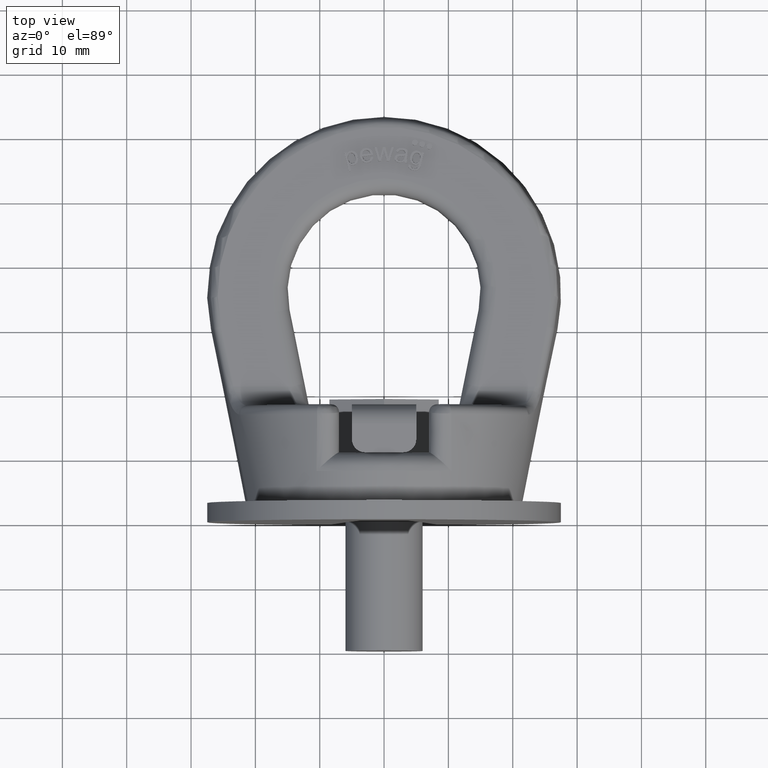
[diagram: clean part render]
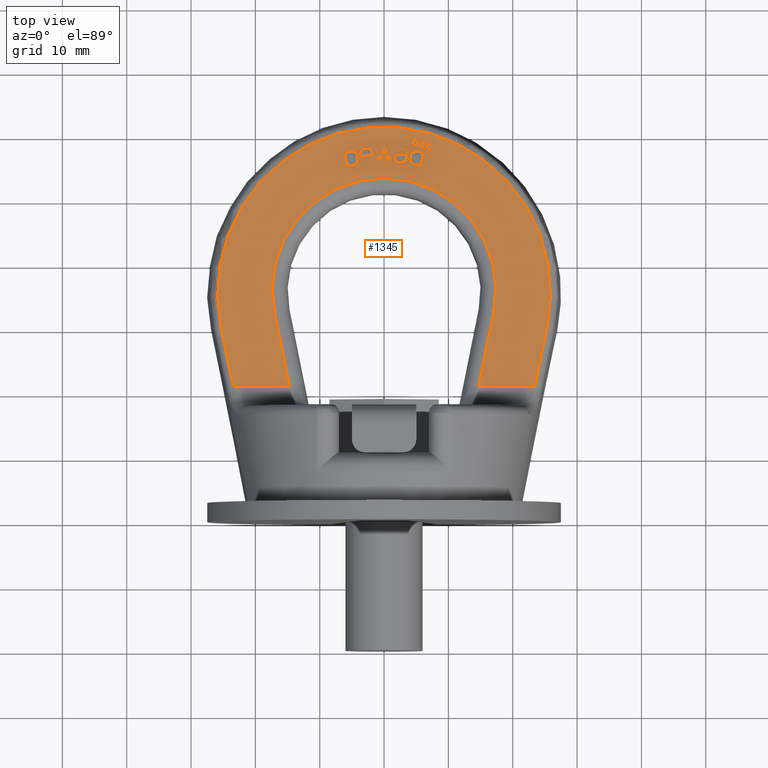
[diagram: same view with one face highlighted and labeled with its STEP entity id]
A machine part, top view. The second image highlights one B-rep face of the part: STEP entity #1345.
In plain terms, the highlighted planar face has unit normal (0, -0, -1).
Its self-contained STEP definition (entity closure, byte-faithful):
#1345=ADVANCED_FACE('',(#1795,#1796,#1797,#1798,#1799,#1800,#1801,#1802,
#1803),#1585,.F.);
#1585=PLANE('',#5169);
#1704=CIRCLE('',#5164,0.45);
#1705=CIRCLE('',#5165,0.45);
#1706=CIRCLE('',#5166,0.45);
#1707=CIRCLE('',#5167,17.4);
#1708=CIRCLE('',#5168,25.8582675367087);
#1795=FACE_BOUND('',#1853,.T.);
#1796=FACE_BOUND('',#1854,.T.);
#1797=FACE_BOUND('',#1855,.T.);
#1798=FACE_BOUND('',#1856,.T.);
#1799=FACE_BOUND('',#1857,.T.);
#1800=FACE_BOUND('',#1858,.T.);
#1801=FACE_BOUND('',#1859,.T.);
#1802=FACE_BOUND('',#1860,.T.);
#1803=FACE_BOUND('',#1861,.T.);
#1853=EDGE_LOOP('',(#2745,#2746,#2747,#2748,#2749,#2750,#2751));
#1854=EDGE_LOOP('',(#2752,#2753,#2754,#2755,#2756,#2757,#2758,#2759,#2760,
#2761,#2762,#2763,#2764,#2765,#2766));
#1855=EDGE_LOOP('',(#2767,#2768,#2769,#2770,#2771));
#1856=EDGE_LOOP('',(#2772));
#1857=EDGE_LOOP('',(#2773));
#1858=EDGE_LOOP('',(#2774));
#1859=EDGE_LOOP('',(#2775,#2776,#2777,#2778,#2779,#2780,#2781,#2782));
#1860=EDGE_LOOP('',(#2783,#2784,#2785,#2786,#2787,#2788));
#1861=EDGE_LOOP('',(#2789,#2790,#2791,#2792,#2793,#2794,#2795,#2796,#2797));
#2129=LINE('',#6323,#2409);
#2130=LINE('',#6355,#2410);
#2131=LINE('',#6357,#2411);
#2132=LINE('',#6358,#2412);
#2133=LINE('',#6361,#2413);
#2134=LINE('',#6363,#2414);
#2135=LINE('',#6365,#2415);
#2136=LINE('',#6379,#2416);
#2137=LINE('',#6381,#2417);
#2138=LINE('',#6397,#2418);
#2139=LINE('',#6399,#2419);
#2140=LINE('',#6401,#2420);
#2141=LINE('',#6403,#2421);
#2142=LINE('',#6405,#2422);
#2143=LINE('',#6421,#2423);
#2144=LINE('',#6444,#2424);
#2145=LINE('',#6454,#2425);
#2146=LINE('',#6456,#2426);
#2147=LINE('',#6470,#2427);
#2148=LINE('',#6472,#2428);
#2149=LINE('',#6473,#2429);
#2150=LINE('',#6476,#2430);
#2151=LINE('',#6478,#2431);
#2152=LINE('',#6480,#2432);
#2153=LINE('',#6482,#2433);
#2154=LINE('',#6506,#2434);
#2155=LINE('',#6551,#2435);
#2409=VECTOR('',#5433,1.);
#2410=VECTOR('',#5434,1.);
#2411=VECTOR('',#5435,1.);
#2412=VECTOR('',#5436,1.);
#2413=VECTOR('',#5437,1.);
#2414=VECTOR('',#5438,1.);
#2415=VECTOR('',#5439,1.);
#2416=VECTOR('',#5440,1.);
#2417=VECTOR('',#5441,1.);
#2418=VECTOR('',#5442,1.);
#2419=VECTOR('',#5443,1.);
#2420=VECTOR('',#5444,1.);
#2421=VECTOR('',#5445,1.);
#2422=VECTOR('',#5446,1.);
#2423=VECTOR('',#5447,1.);
#2424=VECTOR('',#5448,1.);
#2425=VECTOR('',#5457,1.);
#2426=VECTOR('',#5458,1.);
#2427=VECTOR('',#5461,1.);
#2428=VECTOR('',#5462,1.);
#2429=VECTOR('',#5463,1.);
#2430=VECTOR('',#5464,1.);
#2431=VECTOR('',#5465,1.);
#2432=VECTOR('',#5466,1.);
#2433=VECTOR('',#5467,1.);
#2434=VECTOR('',#5468,1.);
#2435=VECTOR('',#5469,1.);
#2745=ORIENTED_EDGE('',*,*,#4312,.T.);
#2746=ORIENTED_EDGE('',*,*,#4313,.T.);
#2747=ORIENTED_EDGE('',*,*,#4314,.T.);
#2748=ORIENTED_EDGE('',*,*,#4315,.T.);
#2749=ORIENTED_EDGE('',*,*,#4316,.T.);
#2750=ORIENTED_EDGE('',*,*,#4317,.T.);
#2751=ORIENTED_EDGE('',*,*,#4318,.T.);
#2752=ORIENTED_EDGE('',*,*,#4319,.T.);
#2753=ORIENTED_EDGE('',*,*,#4320,.T.);
#2754=ORIENTED_EDGE('',*,*,#4321,.T.);
#2755=ORIENTED_EDGE('',*,*,#4322,.T.);
#2756=ORIENTED_EDGE('',*,*,#4323,.T.);
#2757=ORIENTED_EDGE('',*,*,#4324,.T.);
#2758=ORIENTED_EDGE('',*,*,#4325,.T.);
#2759=ORIENTED_EDGE('',*,*,#4326,.T.);
#2760=ORIENTED_EDGE('',*,*,#4327,.T.);
#2761=ORIENTED_EDGE('',*,*,#4328,.T.);
#2762=ORIENTED_EDGE('',*,*,#4329,.T.);
#2763=ORIENTED_EDGE('',*,*,#4330,.T.);
#2764=ORIENTED_EDGE('',*,*,#4331,.T.);
#2765=ORIENTED_EDGE('',*,*,#4332,.T.);
#2766=ORIENTED_EDGE('',*,*,#4333,.T.);
#2767=ORIENTED_EDGE('',*,*,#4334,.T.);
#2768=ORIENTED_EDGE('',*,*,#4335,.T.);
#2769=ORIENTED_EDGE('',*,*,#4336,.T.);
#2770=ORIENTED_EDGE('',*,*,#4337,.T.);
#2771=ORIENTED_EDGE('',*,*,#4338,.T.);
#2772=ORIENTED_EDGE('',*,*,#4339,.F.);
#2773=ORIENTED_EDGE('',*,*,#4340,.F.);
#2774=ORIENTED_EDGE('',*,*,#4341,.F.);
#2775=ORIENTED_EDGE('',*,*,#4342,.T.);
#2776=ORIENTED_EDGE('',*,*,#4343,.T.);
#2777=ORIENTED_EDGE('',*,*,#4344,.T.);
#2778=ORIENTED_EDGE('',*,*,#4345,.T.);
#2779=ORIENTED_EDGE('',*,*,#4346,.T.);
#2780=ORIENTED_EDGE('',*,*,#4347,.T.);
#2781=ORIENTED_EDGE('',*,*,#4348,.T.);
#2782=ORIENTED_EDGE('',*,*,#4349,.T.);
#2783=ORIENTED_EDGE('',*,*,#4350,.T.);
#2784=ORIENTED_EDGE('',*,*,#4351,.T.);
#2785=ORIENTED_EDGE('',*,*,#4352,.T.);
#2786=ORIENTED_EDGE('',*,*,#4353,.T.);
#2787=ORIENTED_EDGE('',*,*,#4354,.T.);
#2788=ORIENTED_EDGE('',*,*,#4355,.T.);
#2789=ORIENTED_EDGE('',*,*,#4356,.T.);
#2790=ORIENTED_EDGE('',*,*,#4357,.T.);
#2791=ORIENTED_EDGE('',*,*,#4358,.T.);
#2792=ORIENTED_EDGE('',*,*,#4359,.T.);
#2793=ORIENTED_EDGE('',*,*,#4360,.T.);
#2794=ORIENTED_EDGE('',*,*,#4361,.T.);
#2795=ORIENTED_EDGE('',*,*,#4362,.T.);
#2796=ORIENTED_EDGE('',*,*,#4363,.T.);
#2797=ORIENTED_EDGE('',*,*,#4364,.T.);
#3923=VERTEX_POINT('',#6316);
#3924=VERTEX_POINT('',#6317);
#3925=VERTEX_POINT('',#6322);
#3926=VERTEX_POINT('',#6324);
#3927=VERTEX_POINT('',#6337);
#3928=VERTEX_POINT('',#6354);
#3929=VERTEX_POINT('',#6356);
#3930=VERTEX_POINT('',#6359);
#3931=VERTEX_POINT('',#6360);
#3932=VERTEX_POINT('',#6362);
#3933=VERTEX_POINT('',#6364);
#3934=VERTEX_POINT('',#6366);
#3935=VERTEX_POINT('',#6373);
#3936=VERTEX_POINT('',#6378);
#3937=VERTEX_POINT('',#6380);
#3938=VERTEX_POINT('',#6382);
#3939=VERTEX_POINT('',#6389);
#3940=VERTEX_POINT('',#6396);
#3941=VERTEX_POINT('',#6398);
#3942=VERTEX_POINT('',#6400);
#3943=VERTEX_POINT('',#6402);
#3944=VERTEX_POINT('',#6404);
#3945=VERTEX_POINT('',#6414);
#3946=VERTEX_POINT('',#6415);
#3947=VERTEX_POINT('',#6420);
#3948=VERTEX_POINT('',#6422);
#3949=VERTEX_POINT('',#6443);
#3950=VERTEX_POINT('',#6446);
#3951=VERTEX_POINT('',#6448);
#3952=VERTEX_POINT('',#6450);
#3953=VERTEX_POINT('',#6452);
#3954=VERTEX_POINT('',#6453);
#3955=VERTEX_POINT('',#6455);
#3956=VERTEX_POINT('',#6457);
#3957=VERTEX_POINT('',#6462);
#3958=VERTEX_POINT('',#6464);
#3959=VERTEX_POINT('',#6469);
#3960=VERTEX_POINT('',#6471);
#3961=VERTEX_POINT('',#6474);
#3962=VERTEX_POINT('',#6475);
#3963=VERTEX_POINT('',#6477);
#3964=VERTEX_POINT('',#6479);
#3965=VERTEX_POINT('',#6481);
#3966=VERTEX_POINT('',#6483);
#3967=VERTEX_POINT('',#6507);
#3968=VERTEX_POINT('',#6508);
#3969=VERTEX_POINT('',#6513);
#3970=VERTEX_POINT('',#6530);
#3971=VERTEX_POINT('',#6537);
#3972=VERTEX_POINT('',#6550);
#3973=VERTEX_POINT('',#6552);
#3974=VERTEX_POINT('',#6557);
#3975=VERTEX_POINT('',#6570);
#4312=EDGE_CURVE('',#3923,#3924,#4901,.T.);
#4313=EDGE_CURVE('',#3924,#3925,#4902,.T.);
#4314=EDGE_CURVE('',#3925,#3926,#2129,.T.);
#4315=EDGE_CURVE('',#3926,#3927,#4903,.T.);
#4316=EDGE_CURVE('',#3927,#3928,#4904,.T.);
#4317=EDGE_CURVE('',#3928,#3929,#2130,.T.);
#4318=EDGE_CURVE('',#3929,#3923,#2131,.T.);
#4319=EDGE_CURVE('',#3930,#3931,#2132,.T.);
#4320=EDGE_CURVE('',#3931,#3932,#2133,.T.);
#4321=EDGE_CURVE('',#3932,#3933,#2134,.T.);
#4322=EDGE_CURVE('',#3933,#3934,#2135,.T.);
#4323=EDGE_CURVE('',#3934,#3935,#4905,.T.);
#4324=EDGE_CURVE('',#3935,#3936,#4906,.T.);
#4325=EDGE_CURVE('',#3936,#3937,#2136,.T.);
#4326=EDGE_CURVE('',#3937,#3938,#2137,.T.);
#4327=EDGE_CURVE('',#3938,#3939,#4907,.T.);
#4328=EDGE_CURVE('',#3939,#3940,#4908,.T.);
#4329=EDGE_CURVE('',#3940,#3941,#2138,.T.);
#4330=EDGE_CURVE('',#3941,#3942,#2139,.T.);
#4331=EDGE_CURVE('',#3942,#3943,#2140,.T.);
#4332=EDGE_CURVE('',#3943,#3944,#2141,.T.);
#4333=EDGE_CURVE('',#3944,#3930,#2142,.T.);
#4334=EDGE_CURVE('',#3945,#3946,#4909,.T.);
#4335=EDGE_CURVE('',#3946,#3947,#4910,.T.);
#4336=EDGE_CURVE('',#3947,#3948,#2143,.T.);
#4337=EDGE_CURVE('',#3948,#3949,#4911,.T.);
#4338=EDGE_CURVE('',#3949,#3945,#2144,.T.);
#4339=EDGE_CURVE('',#3950,#3950,#1704,.T.);
#4340=EDGE_CURVE('',#3951,#3951,#1705,.T.);
#4341=EDGE_CURVE('',#3952,#3952,#1706,.T.);
#4342=EDGE_CURVE('',#3953,#3954,#1707,.T.);
#4343=EDGE_CURVE('',#3954,#3955,#2145,.T.);
#4344=EDGE_CURVE('',#3955,#3956,#2146,.T.);
#4345=EDGE_CURVE('',#3956,#3957,#4912,.T.);
#4346=EDGE_CURVE('',#3957,#3958,#1708,.T.);
#4347=EDGE_CURVE('',#3958,#3959,#4913,.T.);
#4348=EDGE_CURVE('',#3959,#3960,#2147,.T.);
#4349=EDGE_CURVE('',#3960,#3953,#2148,.T.);
#4350=EDGE_CURVE('',#3961,#3962,#2149,.T.);
#4351=EDGE_CURVE('',#3962,#3963,#2150,.T.);
#4352=EDGE_CURVE('',#3963,#3964,#2151,.T.);
#4353=EDGE_CURVE('',#3964,#3965,#2152,.T.);
#4354=EDGE_CURVE('',#3965,#3966,#2153,.T.);
#4355=EDGE_CURVE('',#3966,#3961,#4914,.T.);
#4356=EDGE_CURVE('',#3967,#3968,#2154,.T.);
#4357=EDGE_CURVE('',#3968,#3969,#4915,.T.);
#4358=EDGE_CURVE('',#3969,#3970,#4916,.T.);
#4359=EDGE_CURVE('',#3970,#3971,#4917,.T.);
#4360=EDGE_CURVE('',#3971,#3972,#4918,.T.);
#4361=EDGE_CURVE('',#3972,#3973,#2155,.T.);
#4362=EDGE_CURVE('',#3973,#3974,#4919,.T.);
#4363=EDGE_CURVE('',#3974,#3975,#4920,.T.);
#4364=EDGE_CURVE('',#3975,#3967,#4921,.T.);
#4901=B_SPLINE_CURVE_WITH_KNOTS('',3,(#6304,#6305,#6306,#6307,#6308,#6309,
#6310,#6311,#6312,#6313,#6314,#6315),.UNSPECIFIED.,.F.,.F.,(4,2,2,2,2,4),
(0.,0.30564575489209,0.470829306249212,0.636012857606335,0.802206343843957,
1.),.UNSPECIFIED.);
#4902=B_SPLINE_CURVE_WITH_KNOTS('',3,(#6318,#6319,#6320,#6321),
 .UNSPECIFIED.,.F.,.F.,(4,4),(0.,1.),.UNSPECIFIED.);
#4903=B_SPLINE_CURVE_WITH_KNOTS('',3,(#6325,#6326,#6327,#6328,#6329,#6330,
#6331,#6332,#6333,#6334,#6335,#6336),.UNSPECIFIED.,.F.,.F.,(4,2,2,2,2,4),
(0.,0.16330465130929,0.382303784248535,0.619375661168201,0.856447538087869,
1.),.UNSPECIFIED.);
#4904=B_SPLINE_CURVE_WITH_KNOTS('',3,(#6338,#6339,#6340,#6341,#6342,#6343,
#6344,#6345,#6346,#6347,#6348,#6349,#6350,#6351,#6352,#6353),
 .UNSPECIFIED.,.F.,.F.,(4,2,2,2,2,2,2,4),(0.,0.139503666745452,0.312880428291713,
0.486257189837975,0.605370995480444,0.723854105689065,0.842337215897688,
1.),.UNSPECIFIED.);
#4905=B_SPLINE_CURVE_WITH_KNOTS('',3,(#6367,#6368,#6369,#6370,#6371,#6372),
 .UNSPECIFIED.,.F.,.F.,(4,2,4),(0.,0.728909607654982,1.),.UNSPECIFIED.);
#4906=B_SPLINE_CURVE_WITH_KNOTS('',3,(#6374,#6375,#6376,#6377),
 .UNSPECIFIED.,.F.,.F.,(4,4),(0.,1.),.UNSPECIFIED.);
#4907=B_SPLINE_CURVE_WITH_KNOTS('',3,(#6383,#6384,#6385,#6386,#6387,#6388),
 .UNSPECIFIED.,.F.,.F.,(4,2,4),(0.,0.752082276025113,1.),.UNSPECIFIED.);
#4908=B_SPLINE_CURVE_WITH_KNOTS('',3,(#6390,#6391,#6392,#6393,#6394,#6395),
 .UNSPECIFIED.,.F.,.F.,(4,2,4),(0.,0.250451922487262,1.),.UNSPECIFIED.);
#4909=B_SPLINE_CURVE_WITH_KNOTS('',3,(#6406,#6407,#6408,#6409,#6410,#6411,
#6412,#6413),.UNSPECIFIED.,.F.,.F.,(4,2,2,4),(0.,0.36347796861321,0.72808767591244,
1.),.UNSPECIFIED.);
#4910=B_SPLINE_CURVE_WITH_KNOTS('',3,(#6416,#6417,#6418,#6419),
 .UNSPECIFIED.,.F.,.F.,(4,4),(0.,1.),.UNSPECIFIED.);
#4911=B_SPLINE_CURVE_WITH_KNOTS('',3,(#6423,#6424,#6425,#6426,#6427,#6428,
#6429,#6430,#6431,#6432,#6433,#6434,#6435,#6436,#6437,#6438,#6439,#6440,
#6441,#6442),.UNSPECIFIED.,.F.,.F.,(4,2,2,2,2,2,2,2,2,4),(0.,0.10292120312204,
0.206156274885327,0.336063021724233,0.465707475917735,0.599570296299742,
0.73343311668175,0.862845255056171,0.992257393430589,1.),.UNSPECIFIED.);
#4912=B_SPLINE_CURVE_WITH_KNOTS('',3,(#6458,#6459,#6460,#6461),
 .UNSPECIFIED.,.F.,.F.,(4,4),(0.,1.),.UNSPECIFIED.);
#4913=B_SPLINE_CURVE_WITH_KNOTS('',3,(#6465,#6466,#6467,#6468),
 .UNSPECIFIED.,.F.,.F.,(4,4),(0.,1.),.UNSPECIFIED.);
#4914=B_SPLINE_CURVE_WITH_KNOTS('',3,(#6484,#6485,#6486,#6487,#6488,#6489,
#6490,#6491,#6492,#6493,#6494,#6495,#6496,#6497,#6498,#6499,#6500,#6501,
#6502,#6503,#6504,#6505),.UNSPECIFIED.,.F.,.F.,(4,2,2,2,2,2,2,2,2,2,4),
(0.,0.0830854503763809,0.165678296755063,0.273272220956483,0.380460889370507,
0.487248686046667,0.601946689884027,0.717055250849186,0.831909514623418,
0.915821305508702,1.),.UNSPECIFIED.);
#4915=B_SPLINE_CURVE_WITH_KNOTS('',3,(#6509,#6510,#6511,#6512),
 .UNSPECIFIED.,.F.,.F.,(4,4),(0.,1.),.UNSPECIFIED.);
#4916=B_SPLINE_CURVE_WITH_KNOTS('',3,(#6514,#6515,#6516,#6517,#6518,#6519,
#6520,#6521,#6522,#6523,#6524,#6525,#6526,#6527,#6528,#6529),
 .UNSPECIFIED.,.F.,.F.,(4,2,2,2,2,2,2,4),(0.,0.121639465164569,0.243930904991201,
0.445161792748252,0.646392680505297,0.763565096161288,0.881519242448378,
1.),.UNSPECIFIED.);
#4917=B_SPLINE_CURVE_WITH_KNOTS('',3,(#6531,#6532,#6533,#6534,#6535,#6536),
 .UNSPECIFIED.,.F.,.F.,(4,2,4),(0.,0.329344693449399,1.),.UNSPECIFIED.);
#4918=B_SPLINE_CURVE_WITH_KNOTS('',3,(#6538,#6539,#6540,#6541,#6542,#6543,
#6544,#6545,#6546,#6547,#6548,#6549),.UNSPECIFIED.,.F.,.F.,(4,2,2,2,2,4),
(0.,0.017397732214289,0.217983350684955,0.490675035316424,0.745337517658206,
1.),.UNSPECIFIED.);
#4919=B_SPLINE_CURVE_WITH_KNOTS('',3,(#6553,#6554,#6555,#6556),
 .UNSPECIFIED.,.F.,.F.,(4,4),(0.,1.),.UNSPECIFIED.);
#4920=B_SPLINE_CURVE_WITH_KNOTS('',3,(#6558,#6559,#6560,#6561,#6562,#6563,
#6564,#6565,#6566,#6567,#6568,#6569),.UNSPECIFIED.,.F.,.F.,(4,2,2,2,2,4),
(0.,0.201730292707491,0.402155128097314,0.601755169925862,0.80019954507805,
1.),.UNSPECIFIED.);
#4921=B_SPLINE_CURVE_WITH_KNOTS('',3,(#6571,#6572,#6573,#6574,#6575,#6576,
#6577,#6578,#6579,#6580),.UNSPECIFIED.,.F.,.F.,(4,2,2,2,4),(0.,0.161403604805116,
0.323059797411176,0.661780038481078,1.),.UNSPECIFIED.);
#5164=AXIS2_PLACEMENT_3D('',#6445,#5449,#5450);
#5165=AXIS2_PLACEMENT_3D('',#6447,#5451,#5452);
#5166=AXIS2_PLACEMENT_3D('',#6449,#5453,#5454);
#5167=AXIS2_PLACEMENT_3D('',#6451,#5455,#5456);
#5168=AXIS2_PLACEMENT_3D('',#6463,#5459,#5460);
#5169=AXIS2_PLACEMENT_3D('',#6581,#5470,#5471);
#5433=DIRECTION('',(0.926036898244061,-0.377432991523685,5.95219882731175E-17));
#5434=DIRECTION('',(0.240441711768674,0.970663578816961,-1.5307571794995E-16));
#5435=DIRECTION('',(0.97066357881696,-0.240441711768677,3.7918171091743E-17));
#5436=DIRECTION('',(-0.258675883018079,-0.965964175083536,1.52334611951817E-16));
#5437=DIRECTION('',(-0.999999995678886,9.29635859875706E-5,-1.46605559112388E-20));
#5438=DIRECTION('',(-0.297319028478967,0.954778191678215,-1.50570558495899E-16));
#5439=DIRECTION('',(0.999999995678886,-9.29635860091688E-5,1.46605559146449E-20));
#5440=DIRECTION('',(0.26668775938768,0.963782983348834,-1.51990633360199E-16));
#5441=DIRECTION('',(0.999999995678886,-9.29635860151283E-5,1.46605559155848E-20));
#5442=DIRECTION('',(0.999999995678886,-9.29635860255876E-5,1.46605559172342E-20));
#5443=DIRECTION('',(-0.303109223404765,-0.952955822001713,1.5028316690865E-16));
#5444=DIRECTION('',(-0.999999995678886,9.29635860388954E-5,-1.46605559193329E-20));
#5445=DIRECTION('',(-0.260553429481473,0.965459429694196,-1.522550125267E-16));
#5446=DIRECTION('',(-0.226101851815542,0.974103666251997,-1.5361822708022E-16));
#5447=DIRECTION('',(0.99995564898741,0.00941807083053111,-1.48524986983043E-18));
#5448=DIRECTION('',(-0.991600377783164,-0.129339440157622,2.03971057464658E-17));
#5449=DIRECTION('',(0.,1.5770213417971E-16,1.));
#5450=DIRECTION('',(0.,0.999999999999997,0.));
#5451=DIRECTION('',(0.,1.5770213417971E-16,1.));
#5452=DIRECTION('',(0.,0.999999999999997,0.));
#5453=DIRECTION('',(0.,1.5770213417971E-16,1.));
#5454=DIRECTION('',(0.,0.999999999999997,0.));
#5455=DIRECTION('',(0.,-1.5770213417971E-16,-1.));
#5456=DIRECTION('',(0.,1.,-1.4954512723938E-16));
#5457=DIRECTION('',(-0.19766821154562,-0.980268982547319,1.54590510617885E-16));
#5458=DIRECTION('',(1.,1.4851200490521E-15,-2.34206601248592E-31));
#5459=DIRECTION('',(0.,1.5770213417971E-16,1.));
#5460=DIRECTION('',(0.,1.,-1.67714588140348E-16));
#5461=DIRECTION('',(1.,-1.4851200490521E-15,2.34206601248592E-31));
#5462=DIRECTION('',(-0.19766821154562,0.980268982547319,-1.54590510617885E-16));
#5463=DIRECTION('',(0.240261234879321,-0.970708266686889,1.53082765322409E-16));
#5464=DIRECTION('',(-0.970708266686887,-0.240261234879327,3.78897095011224E-17));
#5465=DIRECTION('',(-0.24026123487932,0.970708266686889,-1.53082765322409E-16));
#5466=DIRECTION('',(0.970708266686888,0.240261234879323,-3.78897095011217E-17));
#5467=DIRECTION('',(0.240261234879318,-0.97070826668689,1.53082765322409E-16));
#5468=DIRECTION('',(-0.99157631292765,0.129523803375314,-2.04261802193602E-17));
#5469=DIRECTION('',(-0.965560779386231,0.260177595713109,-4.10305621097029E-17));
#5470=DIRECTION('',(0.,-1.5770213417971E-16,-1.));
#5471=DIRECTION('',(0.,1.,-1.57859836313889E-16));
#6304=CARTESIAN_POINT('',(6.20575754336817,57.3063757401386,6.));
#6305=CARTESIAN_POINT('',(6.05518161335801,56.6985004674489,6.));
#6306=CARTESIAN_POINT('',(5.90460568334785,56.0906251947592,6.));
#6307=CARTESIAN_POINT('',(5.67265232057485,55.1542290945498,6.));
#6308=CARTESIAN_POINT('',(5.5809698240465,54.9302553745608,6.));
#6309=CARTESIAN_POINT('',(5.37662564480681,54.6899122592701,6.));
#6310=CARTESIAN_POINT('',(5.2420504243621,54.6078121137664,6.));
#6311=CARTESIAN_POINT('',(4.90781318724154,54.5224743446232,6.));
#6312=CARTESIAN_POINT('',(4.71619275367271,54.5277574319655,6.));
#6313=CARTESIAN_POINT('',(4.24472578209141,54.6445438532996,6.));
#6314=CARTESIAN_POINT('',(4.0518199735008,54.7524180364342,6.));
#6315=CARTESIAN_POINT('',(3.92220745020137,54.904703685001,6.));
#6316=CARTESIAN_POINT('',(6.20575754336817,57.3063757401386,6.));
#6317=CARTESIAN_POINT('',(3.92220745020137,54.904703685001,6.));
#6318=CARTESIAN_POINT('',(3.92220745020137,54.904703685001,6.));
#6319=CARTESIAN_POINT('',(3.79259492690195,55.0569893335678,6.));
#6320=CARTESIAN_POINT('',(3.75905359406857,55.2463577334012,6.));
#6321=CARTESIAN_POINT('',(3.82064093689039,55.4722516988339,6.));
#6322=CARTESIAN_POINT('',(3.82064093689039,55.4722516988339,6.));
#6323=CARTESIAN_POINT('',(41.5829666251604,40.0811289709585,6.00000000000001));
#6324=CARTESIAN_POINT('',(4.16188763482528,55.3331667851621,6.));
#6325=CARTESIAN_POINT('',(4.16188763482528,55.3331667851621,6.));
#6326=CARTESIAN_POINT('',(4.1497171360946,55.2223272473401,6.));
#6327=CARTESIAN_POINT('',(4.17127277304765,55.1339689886218,6.));
#6328=CARTESIAN_POINT('',(4.30068997402487,54.9797479153109,6.));
#6329=CARTESIAN_POINT('',(4.41576405205717,54.9160661145281,6.));
#6330=CARTESIAN_POINT('',(4.74093982506099,54.8355172805211,6.));
#6331=CARTESIAN_POINT('',(4.87867463331529,54.8361879908635,6.));
#6332=CARTESIAN_POINT('',(5.0949533406775,54.923350430372,6.));
#6333=CARTESIAN_POINT('',(5.18017431618492,55.0010722981359,6.));
#6334=CARTESIAN_POINT('',(5.2786893367955,55.1797755599088,6.));
#6335=CARTESIAN_POINT('',(5.32549224742334,55.3311489177058,6.));
#6336=CARTESIAN_POINT('',(5.38173395548938,55.5646922803139,6.));
#6337=CARTESIAN_POINT('',(5.38173395548938,55.5646922803139,6.));
#6338=CARTESIAN_POINT('',(5.38173395548938,55.5646922803139,6.));
#6339=CARTESIAN_POINT('',(5.1767937308231,55.4193753730725,6.));
#6340=CARTESIAN_POINT('',(4.95626241217821,55.3767523497323,6.));
#6341=CARTESIAN_POINT('',(4.42415660180832,55.5085595326528,6.));
#6342=CARTESIAN_POINT('',(4.22107909102038,55.6695552338382,6.));
#6343=CARTESIAN_POINT('',(4.00188275567911,56.1681999844469,6.));
#6344=CARTESIAN_POINT('',(3.98296469165896,56.439336781128,6.));
#6345=CARTESIAN_POINT('',(4.10530763479221,56.9332354401884,6.));
#6346=CARTESIAN_POINT('',(4.18839672572244,57.1095265753096,6.));
#6347=CARTESIAN_POINT('',(4.42085924575848,57.4131047639506,6.));
#6348=CARTESIAN_POINT('',(4.56082942679884,57.5185468657608,6.));
#6349=CARTESIAN_POINT('',(4.88856330001202,57.6334467307898,6.));
#6350=CARTESIAN_POINT('',(5.06542948324848,57.6394467022555,6.));
#6351=CARTESIAN_POINT('',(5.50885099189005,57.5296073831551,6.));
#6352=CARTESIAN_POINT('',(5.6923855412168,57.3774059149407,6.));
#6353=CARTESIAN_POINT('',(5.80686094408679,57.1347819534282,6.));
#6354=CARTESIAN_POINT('',(5.80686094408679,57.1347819534282,6.));
#6355=CARTESIAN_POINT('',(12.3535770690584,83.5638855254299,6.));
#6356=CARTESIAN_POINT('',(5.86996997357634,57.3895532074231,6.));
#6357=CARTESIAN_POINT('',(48.5163929045178,46.8256676819932,6.));
#6358=CARTESIAN_POINT('',(7.50132722587884,85.7196861322213,6.));
#6359=CARTESIAN_POINT('',(-0.00969874891857249,57.6715282400953,6.));
#6360=CARTESIAN_POINT('',(-0.4573064710731,56.0000425992719,6.));
#6361=CARTESIAN_POINT('',(54.9984191437305,55.994887236133,6.));
#6362=CARTESIAN_POINT('',(-0.848534425392187,56.0000789692257,6.));
#6363=CARTESIAN_POINT('',(-0.737432804766257,55.6432992334099,6.));
#6364=CARTESIAN_POINT('',(-1.52536757645237,58.1735877935451,6.));
#6365=CARTESIAN_POINT('',(54.9986211950545,58.1683331208306,6.));
#6366=CARTESIAN_POINT('',(-1.13804409273526,58.1735517865649,6.));
#6367=CARTESIAN_POINT('',(-1.13804409273526,58.1735517865649,6.));
#6368=CARTESIAN_POINT('',(-1.02068856010013,57.7552753339073,6.));
#6369=CARTESIAN_POINT('',(-0.903333027465002,57.3369988812496,6.));
#6370=CARTESIAN_POINT('',(-0.742331537839034,56.7631603033725,6.));
#6371=CARTESIAN_POINT('',(-0.69854627217898,56.607637297537,6.));
#6372=CARTESIAN_POINT('',(-0.654830660853536,56.4520947320095,6.));
#6373=CARTESIAN_POINT('',(-0.654830660853536,56.4520947320095,6.));
#6374=CARTESIAN_POINT('',(-0.654830660853536,56.4520947320095,6.));
#6375=CARTESIAN_POINT('',(-0.649362261636555,56.4751180149979,6.));
#6376=CARTESIAN_POINT('',(-0.611084537304792,56.6247691003413,6.));
#6377=CARTESIAN_POINT('',(-0.54077845332445,56.9002806009293,6.));
#6378=CARTESIAN_POINT('',(-0.54077845332445,56.9002806009293,6.));
#6379=CARTESIAN_POINT('',(7.54750962212476,86.130547597208,6.));
#6380=CARTESIAN_POINT('',(-0.188476842332043,58.1734635113878,6.));
#6381=CARTESIAN_POINT('',(54.9986211950544,58.1683331208303,6.));
#6382=CARTESIAN_POINT('',(0.196503959023868,58.1734277221918,6.));
#6383=CARTESIAN_POINT('',(0.196503959023868,58.1734277221918,6.));
#6384=CARTESIAN_POINT('',(0.306831254319939,57.7531053636731,6.));
#6385=CARTESIAN_POINT('',(0.417158549616009,57.3327830051544,6.));
#6386=CARTESIAN_POINT('',(0.56385432853952,56.773904845254,6.));
#6387=CARTESIAN_POINT('',(0.601384756255444,56.6356566407148,6.));
#6388=CARTESIAN_POINT('',(0.638334211927126,56.4972546377543,6.));
#6389=CARTESIAN_POINT('',(0.638334211927126,56.4972546377543,6.));
#6390=CARTESIAN_POINT('',(0.638334211927126,56.4972546377543,6.));
#6391=CARTESIAN_POINT('',(0.680515503147326,56.6371842038601,6.));
#6392=CARTESIAN_POINT('',(0.722696794367525,56.7771137699659,6.));
#6393=CARTESIAN_POINT('',(0.891117506819213,57.3358220630234,6.));
#6394=CARTESIAN_POINT('',(1.01744504657317,57.7545742218898,6.));
#6395=CARTESIAN_POINT('',(1.1437285270659,58.1733396647988,6.));
#6396=CARTESIAN_POINT('',(1.1437285270659,58.1733396647988,6.));
#6397=CARTESIAN_POINT('',(54.9986211950542,58.1683331208297,6.));
#6398=CARTESIAN_POINT('',(1.50840608129148,58.1733057630654,6.));
#6399=CARTESIAN_POINT('',(10.7056432107963,87.0888252924331,6.));
#6400=CARTESIAN_POINT('',(0.817112733415437,55.9999241246921,6.));
#6401=CARTESIAN_POINT('',(54.9984191437296,55.9948872361301,6.));
#6402=CARTESIAN_POINT('',(0.427446567337142,55.9999603494564,6.));
#6403=CARTESIAN_POINT('',(-0.144151021319441,58.1179684795248,6.));
#6404=CARTESIAN_POINT('',(0.0761652156463484,57.3016046768427,6.));
#6405=CARTESIAN_POINT('',(-0.57353476669561,60.1006756693238,6.));
#6406=CARTESIAN_POINT('',(-3.35202607716547,56.7329249638484,6.));
#6407=CARTESIAN_POINT('',(-3.30721731521263,56.4980678234778,6.));
#6408=CARTESIAN_POINT('',(-3.21545129474865,56.3258346853053,6.));
#6409=CARTESIAN_POINT('',(-2.93757280277486,56.1062751302244,6.));
#6410=CARTESIAN_POINT('',(-2.77644761183763,56.0634503873468,6.));
#6411=CARTESIAN_POINT('',(-2.45742162968367,56.1050625557687,6.));
#6412=CARTESIAN_POINT('',(-2.34583748267765,56.1552192305778,6.));
#6413=CARTESIAN_POINT('',(-2.25817779759022,56.2378575086575,6.));
#6414=CARTESIAN_POINT('',(-3.35202607716547,56.7329249638484,6.));
#6415=CARTESIAN_POINT('',(-2.25817779759022,56.2378575086575,6.));
#6416=CARTESIAN_POINT('',(-2.25817779759022,56.2378575086575,6.));
#6417=CARTESIAN_POINT('',(-2.17139171021996,56.3211557996652,6.));
#6418=CARTESIAN_POINT('',(-2.10932418724049,56.4430238006375,6.));
#6419=CARTESIAN_POINT('',(-2.07294808917799,56.6048825378392,6.));
#6420=CARTESIAN_POINT('',(-2.07294808917799,56.6048825378392,6.));
#6421=CARTESIAN_POINT('',(55.1493411554615,57.1438300138967,6.));
#6422=CARTESIAN_POINT('',(-1.68282294338977,56.6085569270579,6.));
#6423=CARTESIAN_POINT('',(-1.68282294338977,56.6085569270579,6.));
#6424=CARTESIAN_POINT('',(-1.71520918651607,56.3798840271064,6.));
#6425=CARTESIAN_POINT('',(-1.80515361616619,56.1940109670633,6.));
#6426=CARTESIAN_POINT('',(-2.10060867269326,55.907428210507,6.));
#6427=CARTESIAN_POINT('',(-2.30206258389828,55.8196123490718,6.));
#6428=CARTESIAN_POINT('',(-2.87739342064681,55.74456904534,6.));
#6429=CARTESIAN_POINT('',(-3.14398164726295,55.8080896050236,6.));
#6430=CARTESIAN_POINT('',(-3.57069974563824,56.1482984325685,6.));
#6431=CARTESIAN_POINT('',(-3.70016305473674,56.4073419331851,6.));
#6432=CARTESIAN_POINT('',(-3.79317230679176,57.1204114297183,6.));
#6433=CARTESIAN_POINT('',(-3.73465635242915,57.4144094145965,6.));
#6434=CARTESIAN_POINT('',(-3.40744448498657,57.8641926300338,6.));
#6435=CARTESIAN_POINT('',(-3.17353434008079,57.9968655208889,6.));
#6436=CARTESIAN_POINT('',(-2.5780707957206,58.0745348352492,6.));
#6437=CARTESIAN_POINT('',(-2.32522207183296,58.0076742415339,6.));
#6438=CARTESIAN_POINT('',(-1.90232170646931,57.6634715559914,6.));
#6439=CARTESIAN_POINT('',(-1.77346838062591,57.4001047771434,6.));
#6440=CARTESIAN_POINT('',(-1.72423402735026,57.0226421621162,6.));
#6441=CARTESIAN_POINT('',(-1.72074006147039,56.9898175882272,6.));
#6442=CARTESIAN_POINT('',(-1.71663075117233,56.946237827215,6.));
#6443=CARTESIAN_POINT('',(-1.71663075117233,56.946237827215,6.));
#6444=CARTESIAN_POINT('',(56.1101487875991,64.4888764336904,6.));
#6445=CARTESIAN_POINT('',(4.78698557238327,58.9051253899601,6.));
#6446=CARTESIAN_POINT('',(4.78698557238327,59.3551253899601,6.));
#6447=CARTESIAN_POINT('',(5.92590016139337,58.6372195129437,6.));
#6448=CARTESIAN_POINT('',(5.92590016139337,59.0872195129437,6.));
#6449=CARTESIAN_POINT('',(7.05,58.3127205871449,6.));
#6450=CARTESIAN_POINT('',(7.05,58.7627205871449,6.));
#6451=CARTESIAN_POINT('',(0.,36.,6.00000000000001));
#6452=CARTESIAN_POINT('',(-17.0566802963234,32.5605731191062,6.00000000000001));
#6453=CARTESIAN_POINT('',(17.0566802963233,32.5605731191062,6.00000000000001));
#6454=CARTESIAN_POINT('',(14.6298644042528,20.5255962922905,6.00000000000001));
#6455=CARTESIAN_POINT('',(14.7255264461241,21.,6.00000000000001));
#6456=CARTESIAN_POINT('',(55.0000000000001,21.0000000000001,6.00000000000001));
#6457=CARTESIAN_POINT('',(23.4186353164931,21.,6.00000000000001));
#6458=CARTESIAN_POINT('',(23.4186353164931,21.,6.00000000000001));
#6459=CARTESIAN_POINT('',(24.0567876845232,24.1002501434545,6.00000000000001));
#6460=CARTESIAN_POINT('',(24.6939369652983,27.2007068643957,6.00000000000001));
#6461=CARTESIAN_POINT('',(25.3302938991965,30.3013260363502,6.00000000000001));
#6462=CARTESIAN_POINT('',(25.3302938991965,30.3013260363502,6.00000000000001));
#6463=CARTESIAN_POINT('',(-1.38050658413677E-30,35.5,6.00000000000001));
#6464=CARTESIAN_POINT('',(-25.3302938991965,30.3013260363503,6.00000000000001));
#6465=CARTESIAN_POINT('',(-25.3302938991965,30.3013260363503,6.00000000000001));
#6466=CARTESIAN_POINT('',(-24.6939369652983,27.2007068643958,6.00000000000001));
#6467=CARTESIAN_POINT('',(-24.0567876845234,24.1002501434546,6.00000000000001));
#6468=CARTESIAN_POINT('',(-23.4186353164932,21.,6.00000000000001));
#6469=CARTESIAN_POINT('',(-23.4186353164932,21.,6.00000000000001));
#6470=CARTESIAN_POINT('',(54.9999999999999,20.9999999999999,6.00000000000001));
#6471=CARTESIAN_POINT('',(-14.7255264461241,21.,6.00000000000001));
#6472=CARTESIAN_POINT('',(-17.0566802963234,32.5605731191062,6.00000000000001));
#6473=CARTESIAN_POINT('',(-5.96868844841712,57.9095625551995,6.));
#6474=CARTESIAN_POINT('',(-5.37356803578884,55.5051451114011,6.));
#6475=CARTESIAN_POINT('',(-5.11947748961562,54.4785633834697,6.));
#6476=CARTESIAN_POINT('',(55.8492109588014,69.5690008282707,6.));
#6477=CARTESIAN_POINT('',(-5.48332727266479,54.3885064619558,6.));
#6478=CARTESIAN_POINT('',(-6.33253823146631,57.8195056336856,6.));
#6479=CARTESIAN_POINT('',(-6.20558610384076,57.3065910978825,6.));
#6480=CARTESIAN_POINT('',(55.1269521276255,72.4870854641971,6.));
#6481=CARTESIAN_POINT('',(-5.87433119718975,57.3885804201775,6.));
#6482=CARTESIAN_POINT('',(-6.00128332481532,57.9014949559807,6.));
#6483=CARTESIAN_POINT('',(-5.80647537644103,57.1144279703381,6.));
#6484=CARTESIAN_POINT('',(-5.80647537644103,57.1144279703381,6.));
#6485=CARTESIAN_POINT('',(-5.75495155484601,57.2410297303356,6.));
#6486=CARTESIAN_POINT('',(-5.68617737849099,57.3434388891467,6.));
#6487=CARTESIAN_POINT('',(-5.51614989227521,57.4990341426942,6.));
#6488=CARTESIAN_POINT('',(-5.40327322657239,57.5557721466986,6.));
#6489=CARTESIAN_POINT('',(-5.08035654411625,57.6356976645422,6.));
#6490=CARTESIAN_POINT('',(-4.90652356101996,57.6289143346052,6.));
#6491=CARTESIAN_POINT('',(-4.58094141169125,57.5137955080985,6.));
#6492=CARTESIAN_POINT('',(-4.44250948039674,57.4085408942253,6.));
#6493=CARTESIAN_POINT('',(-4.21671123678243,57.1061589969592,6.));
#6494=CARTESIAN_POINT('',(-4.13417431668669,56.9298432833883,6.));
#6495=CARTESIAN_POINT('',(-4.03091545902558,56.5126547727631,6.));
#6496=CARTESIAN_POINT('',(-4.02220651555314,56.308458961135,6.));
#6497=CARTESIAN_POINT('',(-4.09481591643152,55.9245679397076,6.));
#6498=CARTESIAN_POINT('',(-4.1768993389815,55.7633844212304,6.));
#6499=CARTESIAN_POINT('',(-4.43106542570804,55.5046186971086,6.));
#6500=CARTESIAN_POINT('',(-4.57776688678751,55.4198641346648,6.));
#6501=CARTESIAN_POINT('',(-4.86505661132007,55.3487566903861,6.));
#6502=CARTESIAN_POINT('',(-4.98048083402139,55.3470689163628,6.));
#6503=CARTESIAN_POINT('',(-5.1980718838063,55.3993240197686,6.));
#6504=CARTESIAN_POINT('',(-5.29241811034099,55.4437969487173,6.));
#6505=CARTESIAN_POINT('',(-5.37356803578884,55.5051451114011,6.));
#6506=CARTESIAN_POINT('',(51.9157619979333,49.3884531909636,6.));
#6507=CARTESIAN_POINT('',(3.58663375078709,55.7014040176141,6.));
#6508=CARTESIAN_POINT('',(3.19870137665285,55.7520773504632,6.));
#6509=CARTESIAN_POINT('',(3.19870137665284,55.7520773504632,6.));
#6510=CARTESIAN_POINT('',(3.16982659658713,55.8324730612366,6.));
#6511=CARTESIAN_POINT('',(3.15667878401665,55.924746080848,6.));
#6512=CARTESIAN_POINT('',(3.15905913034065,56.0273744195614,6.));
#6513=CARTESIAN_POINT('',(3.15905913034065,56.0273744195614,6.));
#6514=CARTESIAN_POINT('',(3.15905913034065,56.0273744195614,6.));
#6515=CARTESIAN_POINT('',(3.00622081233109,55.9304678935984,6.));
#6516=CARTESIAN_POINT('',(2.86317649634982,55.8663371311861,6.));
#6517=CARTESIAN_POINT('',(2.5961610022582,55.804985142575,6.));
#6518=CARTESIAN_POINT('',(2.45673919119489,55.7994608370121,6.));
#6519=CARTESIAN_POINT('',(2.06958113317667,55.8500330254843,6.));
#6520=CARTESIAN_POINT('',(1.89207430827169,55.9320421415375,6.));
#6521=CARTESIAN_POINT('',(1.66367163282642,56.1971668032911,6.));
#6522=CARTESIAN_POINT('',(1.61791351335012,56.3532959353351,6.));
#6523=CARTESIAN_POINT('',(1.65519012598691,56.6386690108131,6.));
#6524=CARTESIAN_POINT('',(1.69259258784641,56.7320787389794,6.));
#6525=CARTESIAN_POINT('',(1.81322165716199,56.8933776515403,6.));
#6526=CARTESIAN_POINT('',(1.88633343651512,56.9552189168073,6.));
#6527=CARTESIAN_POINT('',(2.05839495010289,57.0397911232917,6.));
#6528=CARTESIAN_POINT('',(2.15232649890041,57.0683038803388,6.));
#6529=CARTESIAN_POINT('',(2.25501751656621,57.0827532153358,6.));
#6530=CARTESIAN_POINT('',(2.25501751656621,57.0827532153358,6.));
#6531=CARTESIAN_POINT('',(2.25501751656621,57.0827532153358,6.));
#6532=CARTESIAN_POINT('',(2.33106265509879,57.0921693712247,6.));
#6533=CARTESIAN_POINT('',(2.44340124678472,57.0960707465292,6.));
#6534=CARTESIAN_POINT('',(2.89704863788278,57.0908648036648,6.));
#6535=CARTESIAN_POINT('',(3.12396218816939,57.1031465128509,6.));
#6536=CARTESIAN_POINT('',(3.2720239126274,57.1333407634184,6.));
#6537=CARTESIAN_POINT('',(3.2720239126274,57.1333407634184,6.));
#6538=CARTESIAN_POINT('',(3.2720239126274,57.1333407634184,6.));
#6539=CARTESIAN_POINT('',(3.28013322868355,57.1833641359486,6.));
#6540=CARTESIAN_POINT('',(3.2850825254149,57.2152247760252,6.));
#6541=CARTESIAN_POINT('',(3.3062556413926,57.3773166828967,6.));
#6542=CARTESIAN_POINT('',(3.28435489350527,57.4869866160121,6.));
#6543=CARTESIAN_POINT('',(3.13868992424944,57.6521089641117,6.));
#6544=CARTESIAN_POINT('',(3.00255586835916,57.7110994029469,6.));
#6545=CARTESIAN_POINT('',(2.64017592605411,57.7584349713569,6.));
#6546=CARTESIAN_POINT('',(2.50776268307783,57.7455461380799,6.));
#6547=CARTESIAN_POINT('',(2.32480452255633,57.6471561343652,6.));
#6548=CARTESIAN_POINT('',(2.24971694733838,57.548607258632,6.));
#6549=CARTESIAN_POINT('',(2.18947224493117,57.4009067977768,6.));
#6550=CARTESIAN_POINT('',(2.18947224493117,57.4009067977768,6.));
#6551=CARTESIAN_POINT('',(47.5063678205477,45.1899293142666,6.));
#6552=CARTESIAN_POINT('',(1.83267986173343,57.497047182112,6.));
#6553=CARTESIAN_POINT('',(1.83267986173343,57.497047182112,6.));
#6554=CARTESIAN_POINT('',(1.88595571909631,57.6456579423596,6.));
#6555=CARTESIAN_POINT('',(1.95626134387796,57.76185900458,6.));
#6556=CARTESIAN_POINT('',(2.0443710521944,57.8455492243963,6.));
#6557=CARTESIAN_POINT('',(2.0443710521944,57.8455492243963,6.));
#6558=CARTESIAN_POINT('',(2.0443710521944,57.8455492243963,6.));
#6559=CARTESIAN_POINT('',(2.13180584869516,57.9301015834574,6.));
#6560=CARTESIAN_POINT('',(2.25120214570699,57.9880335943857,6.));
#6561=CARTESIAN_POINT('',(2.55004918150762,58.0523746263478,6.));
#6562=CARTESIAN_POINT('',(2.72000327563318,58.0560514211964,6.));
#6563=CARTESIAN_POINT('',(3.09554659191085,58.0069963983784,6.));
#6564=CARTESIAN_POINT('',(3.24442982594341,57.965103249327,6.));
#6565=CARTESIAN_POINT('',(3.46784119110997,57.8479421048998,6.));
#6566=CARTESIAN_POINT('',(3.54660690241501,57.7824454267029,6.));
#6567=CARTESIAN_POINT('',(3.639779517113,57.6366955088806,6.));
#6568=CARTESIAN_POINT('',(3.6673429882915,57.5491861484381,6.));
#6569=CARTESIAN_POINT('',(3.67590247189237,57.4459027833154,6.));
#6570=CARTESIAN_POINT('',(3.67590247189237,57.4459027833154,6.));
#6571=CARTESIAN_POINT('',(3.67590247189237,57.4459027833154,6.));
#6572=CARTESIAN_POINT('',(3.68014037711904,57.3818828941131,6.));
#6573=CARTESIAN_POINT('',(3.67172247389371,57.2692074935101,6.));
#6574=CARTESIAN_POINT('',(3.62934310717152,56.9447700148111,6.));
#6575=CARTESIAN_POINT('',(3.60813685642704,56.7824244429836,6.));
#6576=CARTESIAN_POINT('',(3.54249688341949,56.2799141651863,6.));
#6577=CARTESIAN_POINT('',(3.52220803187699,56.0643021686574,6.));
#6578=CARTESIAN_POINT('',(3.5312632018164,55.8805950811579,6.));
#6579=CARTESIAN_POINT('',(3.5509104482643,55.7896601259684,6.));
#6580=CARTESIAN_POINT('',(3.58663375078709,55.7014040176141,6.));
#6581=CARTESIAN_POINT('',(55.,73.,6.));